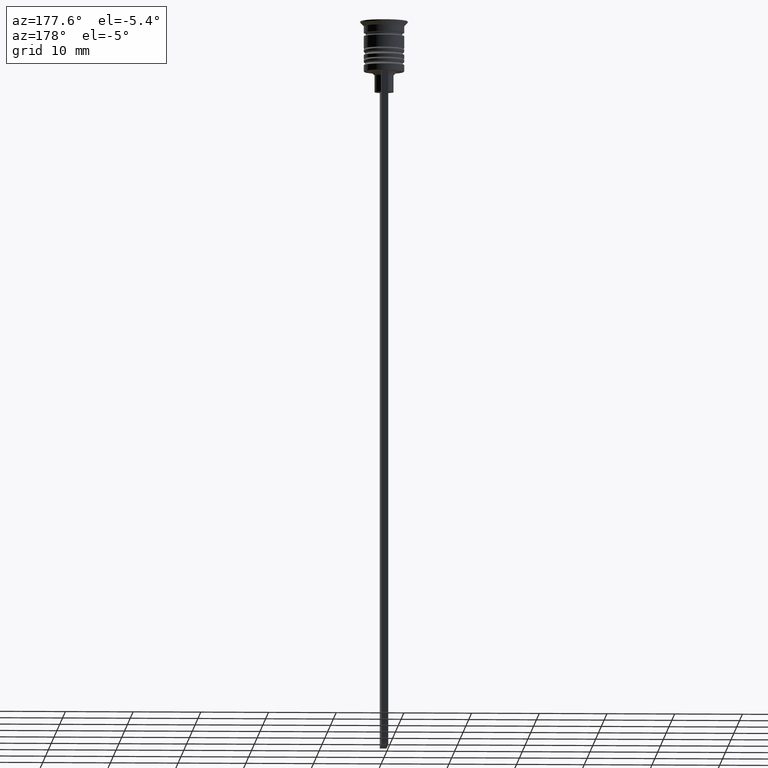
[diagram: clean part render]
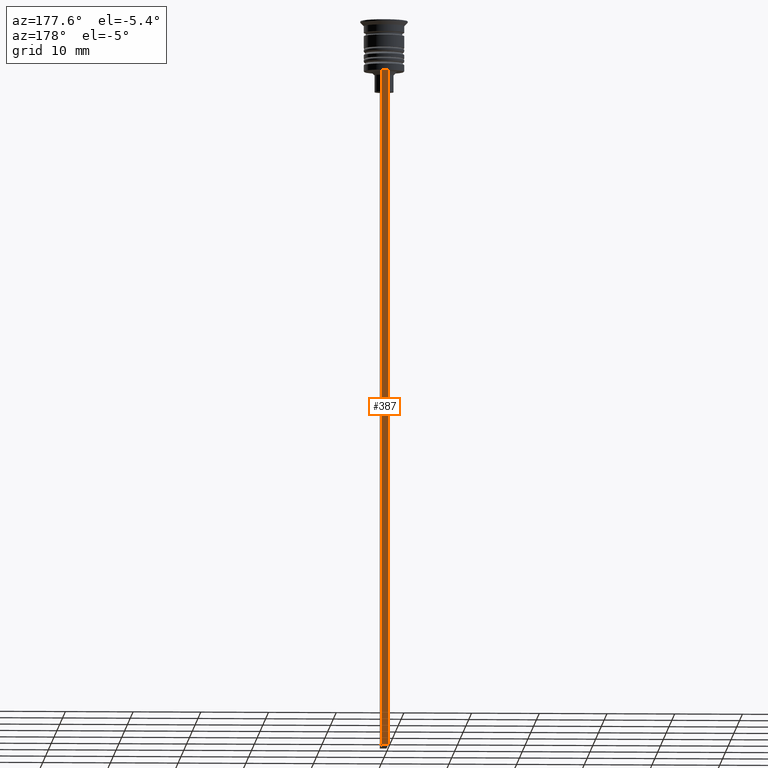
[diagram: same view with one face highlighted and labeled with its STEP entity id]
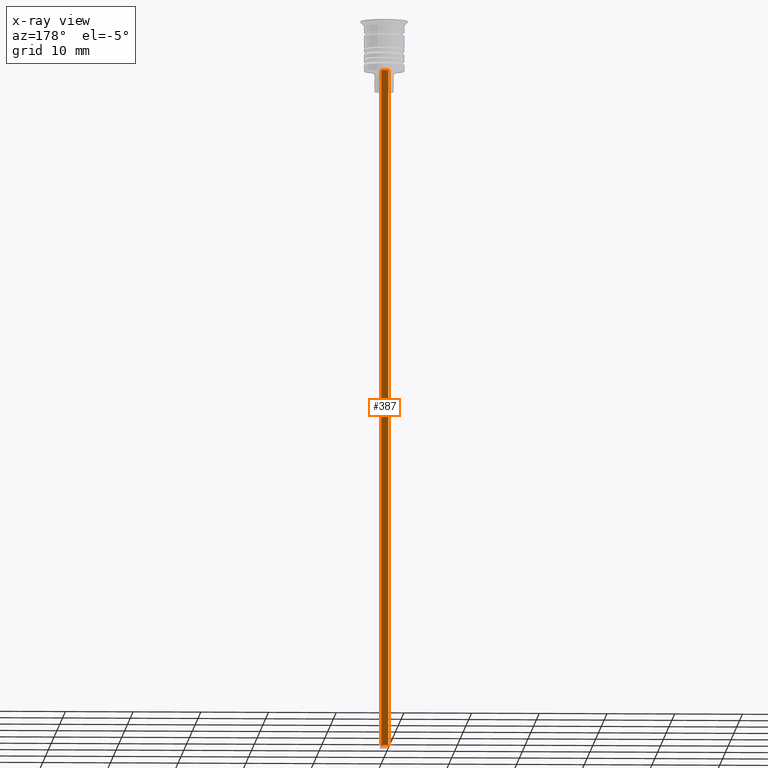
[diagram: x-ray of the same camera — body ghosted, the highlighted face saturated]
A machine part, auxiliary view. The second image highlights one B-rep face of the part: STEP entity #387.
The next image is the same camera in x-ray: the body ghosted, the highlighted face saturated — about 0% of this face is hidden behind the body in this view.
In plain terms, the highlighted planar face has unit normal (0, -1, -0).
Its self-contained STEP definition (entity closure, byte-faithful):
#137 = CARTESIAN_POINT ( 'NONE',  ( 0.4999999999999998890, 3.000000000000000000, -7.500000000000000000 ) ) ;
#157 = ORIENTED_EDGE ( 'NONE', *, *, #1020, .T. ) ;
#281 = DIRECTION ( 'NONE',  ( -1.000000000000000000, 0.000000000000000000, 0.000000000000000000 ) ) ;
#309 = LINE ( 'NONE', #1919, #878 ) ;
#316 = VERTEX_POINT ( 'NONE', #2310 ) ;
#351 = VECTOR ( 'NONE', #281, 1000.000000000000000 ) ;
#387 = ADVANCED_FACE ( 'NONE', ( #1428 ), #542, .F. ) ;
#399 = CARTESIAN_POINT ( 'NONE',  ( 0.4999999999999998890, 3.000000000000000000, -1.417237469701779329 ) ) ;
#409 = LINE ( 'NONE', #399, #1866 ) ;
#477 = CARTESIAN_POINT ( 'NONE',  ( 0.4999999999999998890, 3.000000000000000000, -107.5000000000000000 ) ) ;
#542 = PLANE ( 'NONE',  #1862 ) ;
#571 = EDGE_CURVE ( 'NONE', #1501, #1465, #827, .T. ) ;
#668 = CARTESIAN_POINT ( 'NONE',  ( 0.4999999999999998890, 3.000000000000000000, -7.500000000000000000 ) ) ;
#827 = LINE ( 'NONE', #668, #1747 ) ;
#843 = DIRECTION ( 'NONE',  ( 1.000000000000000000, 0.000000000000000000, 0.000000000000000000 ) ) ;
#849 = CARTESIAN_POINT ( 'NONE',  ( -0.5000000000000001110, 3.000000000000000000, -7.500000000000000000 ) ) ;
#851 = EDGE_CURVE ( 'NONE', #1465, #316, #409, .T. ) ;
#863 = DIRECTION ( 'NONE',  ( 0.000000000000000000, 0.000000000000000000, -1.000000000000000000 ) ) ;
#878 = VECTOR ( 'NONE', #863, 1000.000000000000000 ) ;
#1020 = EDGE_CURVE ( 'NONE', #316, #1447, #1170, .T. ) ;
#1170 = LINE ( 'NONE', #477, #351 ) ;
#1208 = ORIENTED_EDGE ( 'NONE', *, *, #851, .T. ) ;
#1307 = DIRECTION ( 'NONE',  ( 0.000000000000000000, 0.000000000000000000, -1.000000000000000000 ) ) ;
#1428 = FACE_OUTER_BOUND ( 'NONE', #2213, .T. ) ;
#1447 = VERTEX_POINT ( 'NONE', #2119 ) ;
#1465 = VERTEX_POINT ( 'NONE', #137 ) ;
#1487 = DIRECTION ( 'NONE',  ( 0.000000000000000000, 0.000000000000000000, -1.000000000000000000 ) ) ;
#1501 = VERTEX_POINT ( 'NONE', #849 ) ;
#1580 = ORIENTED_EDGE ( 'NONE', *, *, #571, .T. ) ;
#1747 = VECTOR ( 'NONE', #843, 1000.000000000000000 ) ;
#1802 = CARTESIAN_POINT ( 'NONE',  ( 0.4999999999999998890, 3.000000000000000000, -1.417237469701779329 ) ) ;
#1848 = DIRECTION ( 'NONE',  ( 0.000000000000000000, -1.000000000000000000, -0.000000000000000000 ) ) ;
#1862 = AXIS2_PLACEMENT_3D ( 'NONE', #1802, #1848, #1307 ) ;
#1866 = VECTOR ( 'NONE', #1487, 1000.000000000000000 ) ;
#1867 = EDGE_CURVE ( 'NONE', #1501, #1447, #309, .T. ) ;
#1919 = CARTESIAN_POINT ( 'NONE',  ( -0.5000000000000001110, 3.000000000000000000, -1.417237469701779329 ) ) ;
#2119 = CARTESIAN_POINT ( 'NONE',  ( -0.5000000000000001110, 3.000000000000000000, -107.5000000000000000 ) ) ;
#2213 = EDGE_LOOP ( 'NONE', ( #2328, #1580, #1208, #157 ) ) ;
#2310 = CARTESIAN_POINT ( 'NONE',  ( 0.4999999999999998890, 3.000000000000000000, -107.5000000000000000 ) ) ;
#2328 = ORIENTED_EDGE ( 'NONE', *, *, #1867, .F. ) ;